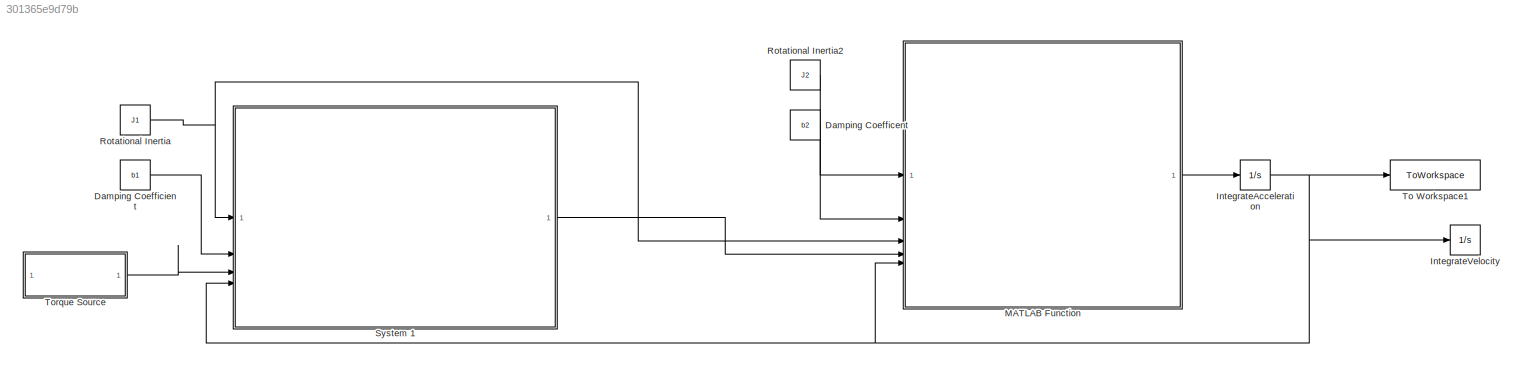
MODEL slx_301365e9d79b
KIND model
CONFIG AbsTol = auto
CONFIG EnableMultiTasking = off
CONFIG FixedStep = 1
CONFIG MaxStep = auto
CONFIG MinStep = auto
CONFIG RelTol = 1e-3
CONFIG SampleTimeConstraint = Unconstrained
CONFIG SolverName = ode4
CONFIG StartTime = 0.0
CONFIG StopTime = 25
BLOCK [Constant] Damping Coefficent
  Value = b2
BLOCK [Constant] Damping Coefficient
  Value = b1
BLOCK [Integrator] IntegrateAcceleration
  InitialCondition = omega_init
BLOCK [Integrator] IntegrateVelocity
  InitialCondition = theta0
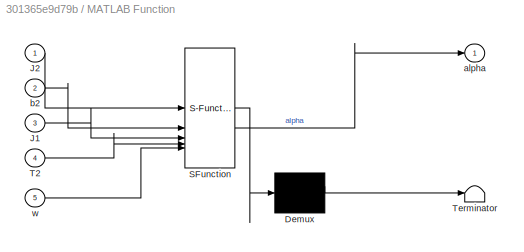
BLOCK [SubSystem] MATLAB Function
  ErrorFcn = Stateflow.Translate.translate
  PermitHierarchicalResolution = ExplicitOnly
  SFBlockType = MATLAB Function
  TreatAsAtomicUnit = on
BLOCK [Demux] MATLAB Function/ Demux 
  Outputs = 1
BLOCK [S-Function] MATLAB Function/ SFunction 
  EnableBusSupport = on
  FunctionName = sf_sfun
  PortCounts = [5 2]
  SFcnIsStateOwnerBlock = off
  SFunctionDeploymentMode = off
  Tag = Stateflow S-Function 1
BLOCK [Terminator] MATLAB Function/ Terminator 
BLOCK [Inport] MATLAB Function/J1
  Port = 3
BLOCK [Inport] MATLAB Function/J2
BLOCK [Inport] MATLAB Function/T2
  Port = 4
BLOCK [Outport] MATLAB Function/alpha
BLOCK [Inport] MATLAB Function/b2
  Port = 2
BLOCK [Inport] MATLAB Function/w
  Port = 5
BLOCK [Constant] Rotational Inertia
  Value = J1
BLOCK [Constant] Rotational Inertia2
  Value = J2
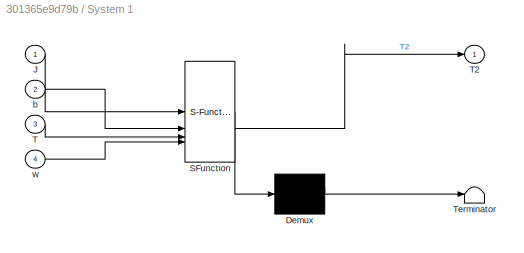
BLOCK [SubSystem] System 1
  ErrorFcn = Stateflow.Translate.translate
  PermitHierarchicalResolution = ExplicitOnly
  SFBlockType = MATLAB Function
  TreatAsAtomicUnit = on
BLOCK [Demux] System 1/ Demux 
  Outputs = 1
BLOCK [S-Function] System 1/ SFunction 
  EnableBusSupport = on
  FunctionName = sf_sfun
  PortCounts = [4 2]
  SFcnIsStateOwnerBlock = off
  SFunctionDeploymentMode = off
  Tag = Stateflow S-Function 2
BLOCK [Terminator] System 1/ Terminator 
BLOCK [Inport] System 1/J
BLOCK [Inport] System 1/T
  Port = 3
BLOCK [Outport] System 1/T2
BLOCK [Inport] System 1/b
  Port = 2
BLOCK [Inport] System 1/w
  Port = 4
BLOCK [ToWorkspace] To Workspace1
  FixptAsFi = on
  MaxDataPoints = inf
  SampleTime = -1
  SaveFormat = Timeseries
  VariableName = omegaoption3
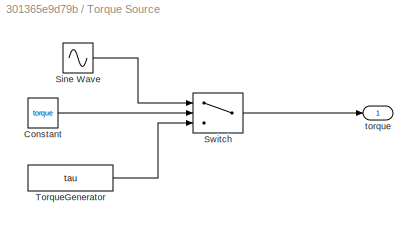
BLOCK [SubSystem] Torque Source
BLOCK [Constant] Torque Source/Constant
  Value = torque
BLOCK [Sin] Torque Source/Sine Wave
  Frequency = w
  SampleTime = 0
BLOCK [Switch] Torque Source/Switch
  Criteria = u2 > Threshold
  InputSameDT = off
  SaturateOnIntegerOverflow = off
BLOCK [Constant] Torque Source/TorqueGenerator
  Value = tau
BLOCK [Outport] Torque Source/torque
LINE Damping Coefficent:1 -> MATLAB Function:2
LINE Damping Coefficient:1 -> System 1:2
NET IntegrateAcceleration:1 -> IntegrateVelocity:1, MATLAB Function:5, System 1:4, To Workspace1:1
LINE MATLAB Function:1 -> IntegrateAcceleration:1
LINE Rotational Inertia2:1 -> MATLAB Function:1
NET Rotational Inertia:1 -> MATLAB Function:3, System 1:1
LINE System 1:1 -> MATLAB Function:4
LINE Torque Source/Constant:1 -> Torque Source/Switch:2
LINE Torque Source/Sine Wave:1 -> Torque Source/Switch:1
LINE Torque Source/Switch:1 -> Torque Source/torque:1
LINE Torque Source/TorqueGenerator:1 -> Torque Source/Switch:3
LINE Torque Source:1 -> System 1:3
note: NET lines group one-source signal fan-out (src -> all destinations, sorted); 1:1 wires keep LINE
CHART MATLAB Function states=1 transitions=1
  STATE_LABEL 'eML_blk_kernel()'
  STATE_LABEL 'SCRIPT:\nfunction alpha = fcn(J2,b2,J1,T2,w)\nalpha =(1/(J1+J2)*(T2-T1)-(((b2)/(J1+J2))*w));\n\n'
CHART System 1 states=1 transitions=1
  STATE_LABEL 'eML_blk_kernel()'
  STATE_LABEL 'SCRIPT:\nfunction  T2= fcn(J,b,T,w)\nT2=T ;%-(w*b)-(J*wdot) \n\n\n\n\n'
CHART  states=0 transitions=0
CHART  states=0 transitions=0
